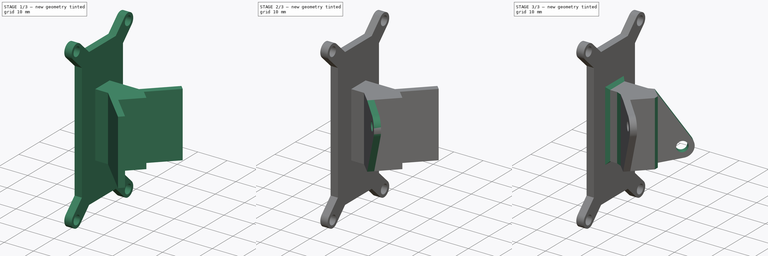
[diagram: build sequence overview — one tinted view per stage of 3, left to right]
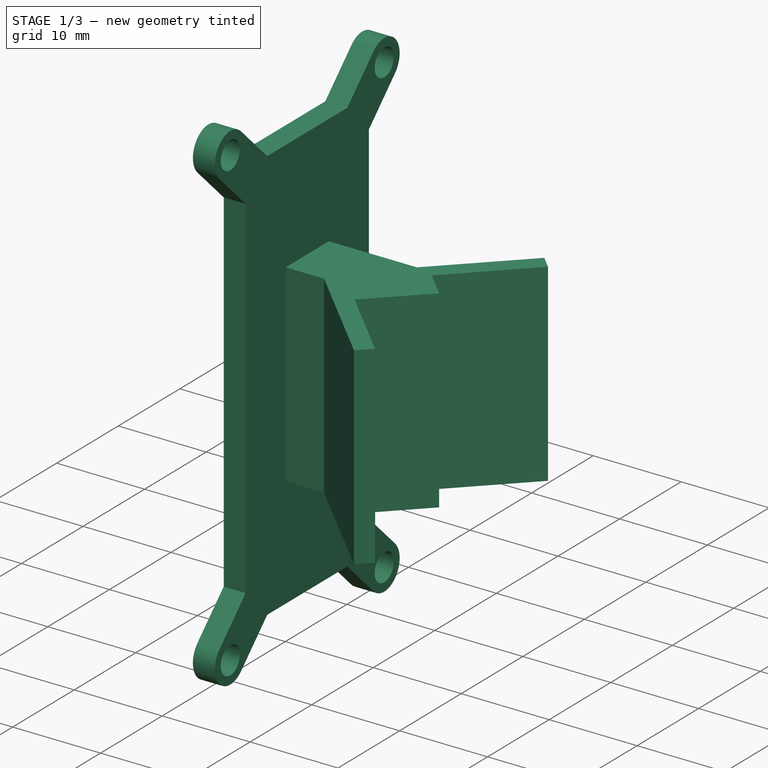
[diagram: stage 1 of 3 — iso view after this stage's code; geometry added in this stage tinted green]
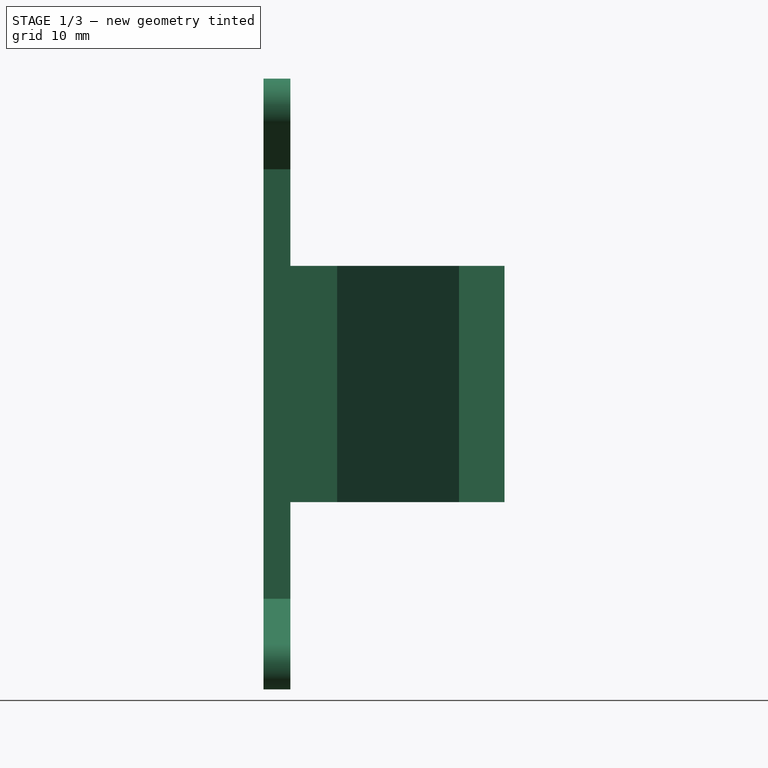
[diagram: stage 1 of 3 — front view after this stage's code; geometry added in this stage tinted green]
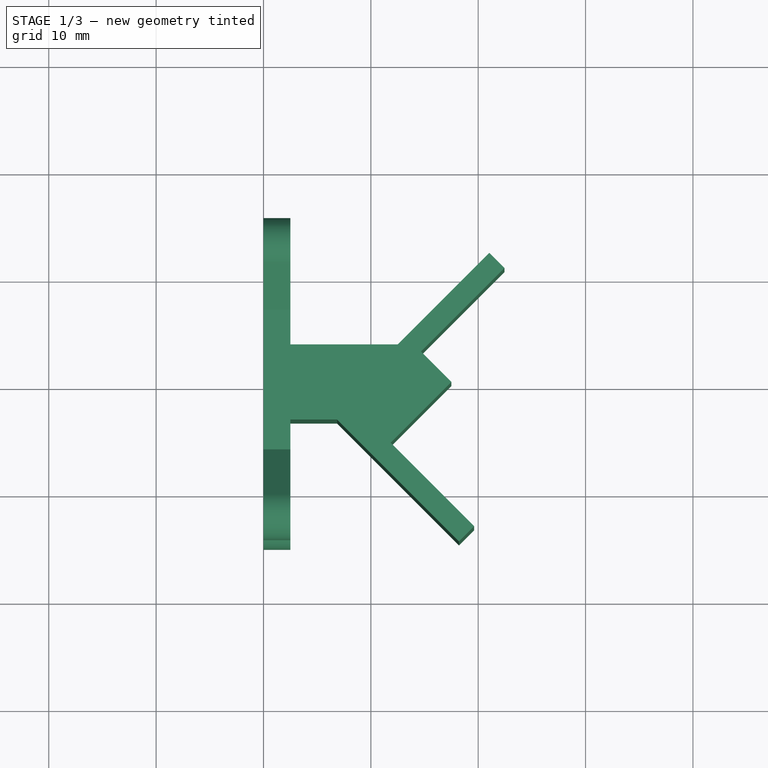
[diagram: stage 1 of 3 — top view after this stage's code; geometry added in this stage tinted green]
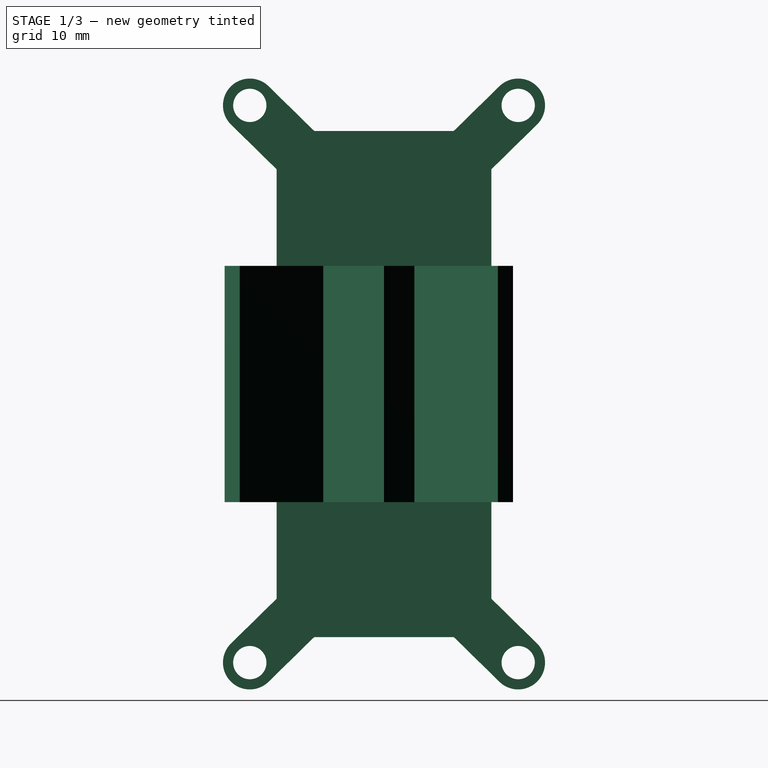
[diagram: stage 1 of 3 — right view after this stage's code; geometry added in this stage tinted green]
FCSTD DOCUMENT  (FreeCAD 0.18R16110 (Git))
Label: Soporte_MicroControlador
License: All rights reserved
LicenseURL: http://en.wikipedia.org/wiki/All_rights_reserved
objects: Sketcher::SketchObject×4, PartDesign::Pad×2, PartDesign::Pocket×2, PartDesign::Plane×1, PartDesign::Chamfer×1, PartDesign::Body×1
note: 15 computed .brp shape members not serialized (recipe doc carries the construction recipe); baked Part::Feature solids carry a one-line shape summary decoded from their .brp

FEATURE [Sketcher::SketchObject] Sketch170
  MapMode = 5
  Placement = pos=(0,0,0) rot=(0.57735,0.57735,0.57735;2.0944rad)
  Support = -> [YZ_Plane076]
  sketch-geometry (27):
    g0: Circle CenterX=-12.5 CenterY=25.95 CenterZ=0 NormalX=0 NormalY=0 NormalZ=1 AngleXU=0 Radius=1.55
    g1: ArcOfCircle CenterX=-12.5 CenterY=25.95 CenterZ=0 NormalX=0 NormalY=0 NormalZ=1 AngleXU=0 Radius=2.5 StartAngle=0.795542 EndAngle=3.93713
    g2: LineSegment StartX=-14.2497 StartY=24.1644 StartZ=0 EndX=-10 EndY=20 EndZ=0
    g3: LineSegment StartX=-10.7503 StartY=27.7356 StartZ=0 EndX=-6.50051 EndY=23.5712 EndZ=0
    g4: LineSegment [constr] StartX=-10 StartY=20 StartZ=0 EndX=-6.50051 EndY=23.5712 EndZ=0
    g5: LineSegment StartX=-10 StartY=20 StartZ=0 EndX=-10 EndY=0 EndZ=0
    g6: LineSegment StartX=-6.50051 StartY=23.5712 StartZ=0 EndX=0 EndY=23.5712 EndZ=0
    g7: Circle CenterX=12.5 CenterY=25.95 CenterZ=0 NormalX=0 NormalY=0 NormalZ=1 AngleXU=0 Radius=1.55
    g8: ArcOfCircle CenterX=12.5 CenterY=25.95 CenterZ=0 NormalX=0 NormalY=0 NormalZ=1 AngleXU=0 Radius=2.5 StartAngle=5.48764 EndAngle=8.62924
    g9: LineSegment StartX=14.2497 StartY=24.1644 StartZ=0 EndX=10 EndY=20 EndZ=0
    g10: LineSegment StartX=10.7503 StartY=27.7356 StartZ=0 EndX=6.50051 EndY=23.5712 EndZ=0
    g11: LineSegment [constr] StartX=10 StartY=20 StartZ=0 EndX=6.50051 EndY=23.5712 EndZ=0
    g12: LineSegment StartX=6.50051 StartY=23.5712 StartZ=0 EndX=0 EndY=23.5712 EndZ=0
    g13: LineSegment StartX=10 StartY=20 StartZ=0 EndX=10 EndY=0 EndZ=0
    g14: Circle CenterX=-12.5 CenterY=-25.95 CenterZ=0 NormalX=0 NormalY=0 NormalZ=1 AngleXU=0 Radius=1.55
    g15: ArcOfCircle CenterX=-12.5 CenterY=-25.95 CenterZ=0 NormalX=0 NormalY=0 NormalZ=1 AngleXU=0 Radius=2.5 StartAngle=2.34606 EndAngle=5.48765
    g16: LineSegment StartX=-14.2498 StartY=-24.1644 StartZ=0 EndX=-10 EndY=-20 EndZ=0
    g17: LineSegment StartX=-10.7502 StartY=-27.7356 StartZ=0 EndX=-6.50051 EndY=-23.5712 EndZ=0
    g18: LineSegment [constr] StartX=-10 StartY=-20 StartZ=0 EndX=-6.50051 EndY=-23.5712 EndZ=0
    g19: LineSegment StartX=-10 StartY=-20 StartZ=0 EndX=-10 EndY=0 EndZ=0
    g20: LineSegment StartX=-6.50051 StartY=-23.5712 StartZ=0 EndX=6.50051 EndY=-23.5712 EndZ=0
    g21: Circle CenterX=12.5 CenterY=-25.95 CenterZ=0 NormalX=0 NormalY=0 NormalZ=1 AngleXU=0 Radius=1.55
    g22: ArcOfCircle CenterX=12.5 CenterY=-25.95 CenterZ=0 NormalX=0 NormalY=0 NormalZ=1 AngleXU=0 Radius=2.5 StartAngle=3.93713 EndAngle=7.07872
    g23: LineSegment StartX=14.2498 StartY=-24.1644 StartZ=0 EndX=10 EndY=-20 EndZ=0
    g24: LineSegment StartX=10.7502 StartY=-27.7356 StartZ=0 EndX=6.50051 EndY=-23.5712 EndZ=0
    g25: LineSegment [constr] StartX=10 StartY=-20 StartZ=0 EndX=6.50051 EndY=-23.5712 EndZ=0
    g26: LineSegment StartX=10 StartY=-20 StartZ=0 EndX=10 EndY=0 EndZ=0
  constraints (77):
    c: Diameter(g0) = 3.1
    c: Coincident(g1,g0)
    c: Diameter(g1) = 5
    c: Tangent(g2,g1)
    c: Tangent(g3,g1)
    c: Parallel(g3,g2)
    c: Coincident(g1,g3)
    c: Coincident(g1,g2)
    c: DistanceY(g-1,g0) = 25.95
    c: Coincident(g5,g2)
    c: PointOnObject(g5,g-1)
    c: Vertical(g5)
    c: Coincident(g6,g3)
    c: PointOnObject(g6,g-2)
    c: Horizontal(g6)
    c: Coincident(g3,g4)
    c: Coincident(g4,g2)
    c: DistanceX(g0,g-1) = 12.5
    c: DistanceX(g2,g6) = 10
    c: DistanceY(g5,g2) = 20
    c: Diameter(g7) = 3.1
    c: Coincident(g8,g7)
    c: Diameter(g8) = 5
    c: Tangent(g9,g8)
    c: Tangent(g10,g8)
    c: Parallel(g10,g9)
    c: Coincident(g8,g10)
    c: Coincident(g8,g9)
    c: Coincident(g13,g9)
    c: Vertical(g13)
    c: Coincident(g12,g10)
    c: Horizontal(g12)
    c: Coincident(g10,g11)
    c: Coincident(g11,g9)
    c: Coincident(g12,g6)
    c: DistanceX(g6,g7) = 12.5
    c: DistanceX(g6,g9) = 10
    c: DistanceY(g13,g7) = 25.95
    c: PointOnObject(g13,g-1)
    c: Diameter(g14) = 3.1
    c: Coincident(g15,g14)
    c: Diameter(g15) = 5
    c: Tangent(g16,g15)
    c: Tangent(g17,g15)
    c: Parallel(g17,g16)
    c: Coincident(g15,g17)
    c: Coincident(g15,g16)
    c: Coincident(g19,g16)
    c: Vertical(g19)
    c: Coincident(g20,g17)
    c: Horizontal(g20)
    c: Coincident(g17,g18)
    c: Coincident(g18,g16)
    c: Diameter(g21) = 3.1
    c: Coincident(g22,g21)
    c: Diameter(g22) = 5
    c: Tangent(g23,g22)
    c: Tangent(g24,g22)
    c: Parallel(g24,g23)
    c: Coincident(g22,g24)
    c: Coincident(g22,g23)
    c: Coincident(g26,g23)
    c: Vertical(g26)
    c: Coincident(g24,g25)
    c: Coincident(g25,g23)
    c: Coincident(g26,g13)
    c: Coincident(g19,g5)
    c: Coincident(g20,g24)
    c: DistanceX(g14,g-1) = 12.5
    c: DistanceX(g-1,g21) = 12.5
    c: DistanceY(g21,g-1) = 25.95
    c: DistanceY(g14,g-1) = 25.95
    c: Perpendicular(g2,g4)
    c: Perpendicular(g9,g11)
    c: Perpendicular(g18,g16)
    c: Perpendicular(g23,g25)
    c: DistanceY(g16,g5) = 20
FEATURE [PartDesign::Pad] Pad089
  Length = 2.5
  Length2 = 100
  Placement = pos=(0,0,0) rot=(0.57735,0.57735,0.57735;2.0944rad)
  Profile = -> Sketch170
  Type = 0
FEATURE [PartDesign::Plane] DatumPlane002
  AttachmentOffset = pos=(0,0,0) rot=(1,0,0;1.5708rad)
  Length = 36.2264
  MapMode = 5
  Placement = pos=(2.5,-5e-16,5e-16) rot=(0.707107,0.707107,0;3.14159rad)
  ResizeMode = 0
  Support = -> [Pad089]
  Width = 38.6886
FEATURE [Sketcher::SketchObject] Sketch171
  MapMode = 5
  Placement = pos=(2.5,-5e-16,5e-16) rot=(0.707107,0.707107,0;3.14159rad)
  Support = -> [DatumPlane002]
  sketch-geometry (11):
    g0: LineSegment StartX=-13.435 StartY=17.1213 StartZ=0 EndX=-14.8492 EndY=15.7071 EndZ=0
    g1: LineSegment StartX=-14.8492 StartY=15.7071 StartZ=0 EndX=-3.5 EndY=4.35786 EndZ=0
    g2: LineSegment StartX=-3.5 StartY=4.35786 StartZ=0 EndX=-3.5 EndY=0 EndZ=0
    g3: LineSegment StartX=-3.5 StartY=0 StartZ=0 EndX=3.5 EndY=0 EndZ=0
    g4: LineSegment StartX=3.5 StartY=0 StartZ=0 EndX=3.5 EndY=10.0147 EndZ=0
    g5: LineSegment StartX=3.5 StartY=10.0147 StartZ=0 EndX=12.0208 EndY=18.5355 EndZ=0
    g6: LineSegment StartX=12.0208 StartY=18.5355 StartZ=0 EndX=10.6066 EndY=19.9497 EndZ=0
    g7: LineSegment StartX=10.6066 StartY=19.9497 StartZ=0 EndX=2.82843 EndY=12.1716 EndZ=0
    g8: LineSegment StartX=2.82843 StartY=12.1716 StartZ=0 EndX=0 EndY=15 EndZ=0
    g9: LineSegment StartX=0 StartY=15 StartZ=0 EndX=-5.65685 EndY=9.34315 EndZ=0
    g10: LineSegment StartX=-5.65685 StartY=9.34315 StartZ=0 EndX=-13.435 EndY=17.1213 EndZ=0
  constraints (32):
    c: Coincident(g0,g1)
    c: Coincident(g1,g2)
    c: PointOnObject(g2,g-1)
    c: Vertical(g2)
    c: Coincident(g2,g3)
    c: Coincident(g3,g4)
    c: Vertical(g4)
    c: Coincident(g4,g5)
    c: Coincident(g5,g6)
    c: Coincident(g6,g7)
    c: Coincident(g7,g8)
    c: Coincident(g8,g9)
    c: Coincident(g9,g10)
    c: Coincident(g10,g0)
    c: Parallel(g10,g1)
    c: Parallel(g7,g5)
    c: Perpendicular(g8,g9)
    c: Perpendicular(g7,g8)
    c: Perpendicular(g9,g10)
    c: Perpendicular(g0,g10)
    c: Perpendicular(g6,g7)
    c: Distance(g8) = 4
    c: Distance(g9) = 8
    c: PointOnObject(g8,g-2)
    c: Distance(g0) = 2
    c: Distance(g6) = 2
    c: Angle(g-2,g8) = 0.785398
    c: Symmetric(g2,g3,g-2)
    c: Distance(g7) = 11
    c: Distance(g10) = 11
    c: Distance(g1,g4) = 7
    c: Distance(g-1,g8) = 15
FEATURE [PartDesign::Pad] Pad090
  BaseFeature = -> Pad089
  Length = 22
  Length2 = 100
  Midplane = true
  Placement = pos=(0,0,0) rot=(0.57735,0.57735,0.57735;2.0944rad)
  Profile = -> Sketch171
  Type = 0
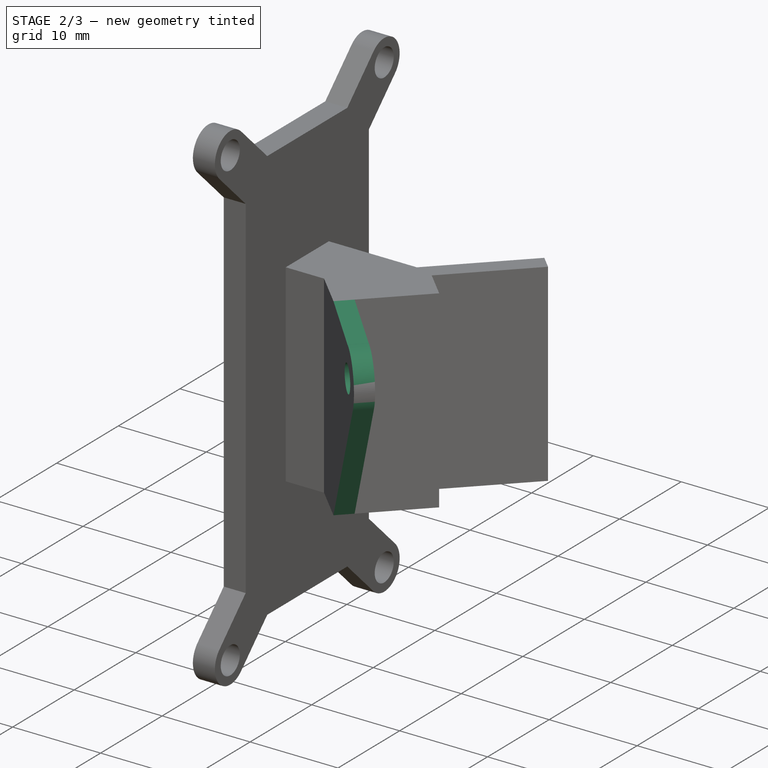
[diagram: stage 2 of 3 — iso view after this stage's code; geometry added in this stage tinted green]
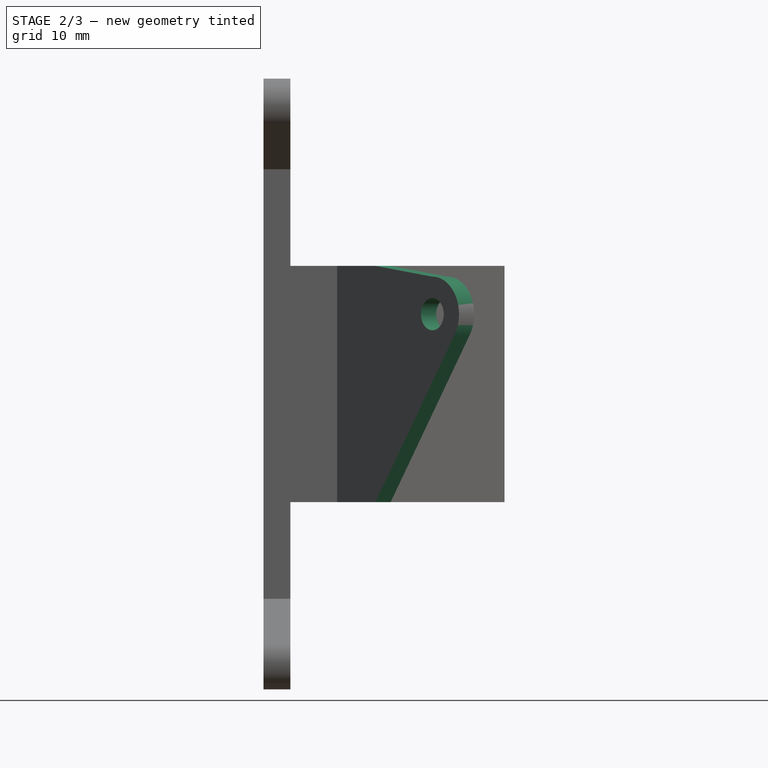
[diagram: stage 2 of 3 — front view after this stage's code; geometry added in this stage tinted green]
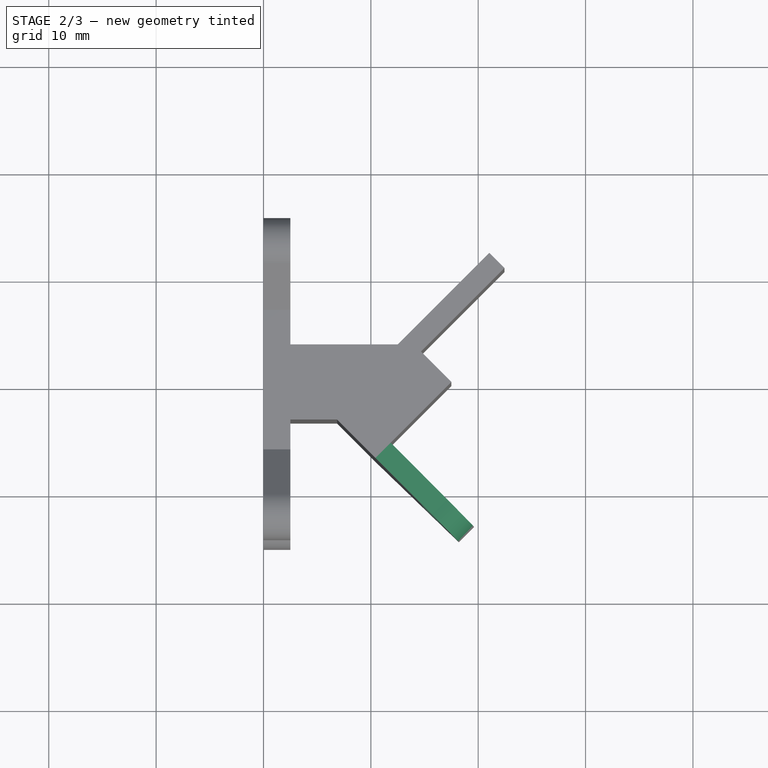
[diagram: stage 2 of 3 — top view after this stage's code; geometry added in this stage tinted green]
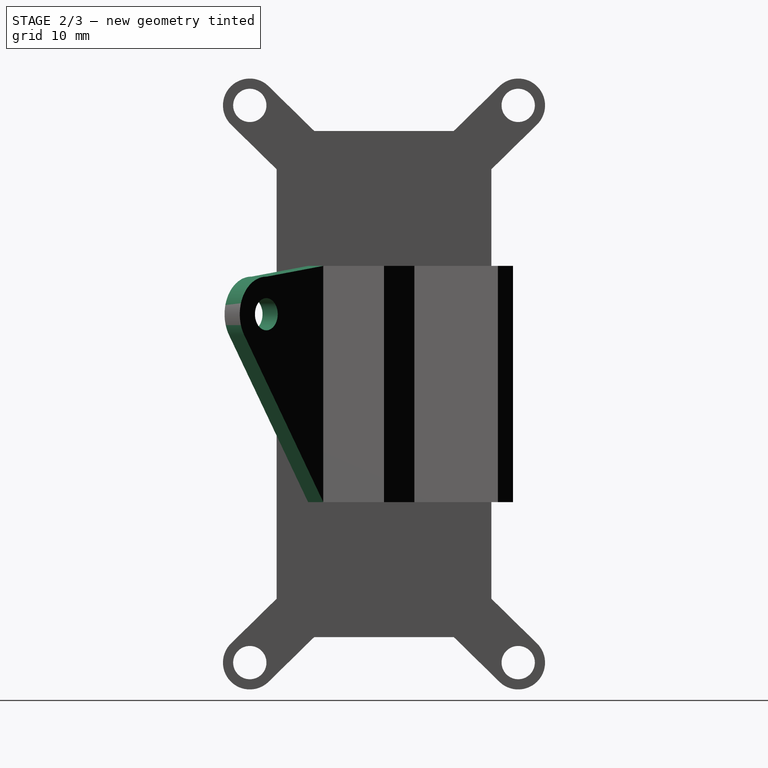
[diagram: stage 2 of 3 — right view after this stage's code; geometry added in this stage tinted green]
FEATURE [Sketcher::SketchObject] Sketch172
  ExternalGeometry = -> [Pad090]
  MapMode = 5
  Placement = pos=(1.67893,1.67893,1.4e-15) rot=(0.281085,0.678598,-0.678598;3.68962rad)
  Support = -> [Pad090]
  sketch-geometry (9):
    g0: Circle CenterX=-19.8744 CenterY=-6.5 CenterZ=0 NormalX=0 NormalY=0 NormalZ=1 AngleXU=0 Radius=1.5
    g1: ArcOfCircle CenterX=-19.8744 CenterY=-6.5 CenterZ=0 NormalX=0 NormalY=0 NormalZ=1 AngleXU=0 Radius=3.5 StartAngle=2.55181 EndAngle=4.72437
    g2: LineSegment StartX=-19.8325 StartY=-9.99975 StartZ=0 EndX=-12.3744 EndY=-11 EndZ=0
    g3: LineSegment StartX=-12.3744 StartY=-11 StartZ=0 EndX=-12.3744 EndY=-12 EndZ=0
    g4: LineSegment StartX=-12.3744 StartY=-12 StartZ=0 EndX=-25.6758 EndY=-12 EndZ=0
    g5: LineSegment StartX=-25.6758 StartY=-12 StartZ=0 EndX=-25.6758 EndY=11.8747 EndZ=0
    g6: LineSegment StartX=-25.6758 StartY=11.8747 StartZ=0 EndX=-12.3744 EndY=11.8747 EndZ=0
    g7: LineSegment StartX=-12.3744 StartY=11.8747 StartZ=0 EndX=-12.3744 EndY=11 EndZ=0
    g8: LineSegment StartX=-12.3744 StartY=11 StartZ=0 EndX=-22.7831 EndY=-4.55338 EndZ=0
  constraints (22):
    c: Distance(g0,g-3) = 3.5
    c: Diameter(g0) = 3
    c: DistanceY(g-1,g0) = -6.5
    c: Coincident(g1,g0)
    c: Tangent(g1,g-3)
    c: Coincident(g2,g3)
    c: Vertical(g3)
    c: Coincident(g3,g4)
    c: Horizontal(g4)
    c: Coincident(g4,g5)
    c: Vertical(g5)
    c: Coincident(g5,g6)
    c: Horizontal(g6)
    c: Coincident(g6,g7)
    c: Vertical(g7)
    c: Coincident(g7,g8)
    c: Tangent(g1,g8)
    c: Coincident(g1,g8)
    c: Coincident(g1,g2)
    c: DistanceY(g3,g3) = 1
    c: Coincident(g2,g-5)
    c: Coincident(g7,g-5)
FEATURE [PartDesign::Pocket] Pocket066
  BaseFeature = -> Pad090
  Length = 5
  Length2 = 100
  Placement = pos=(0,0,0) rot=(0.57735,0.57735,0.57735;2.0944rad)
  Profile = -> Sketch172
  Type = 0
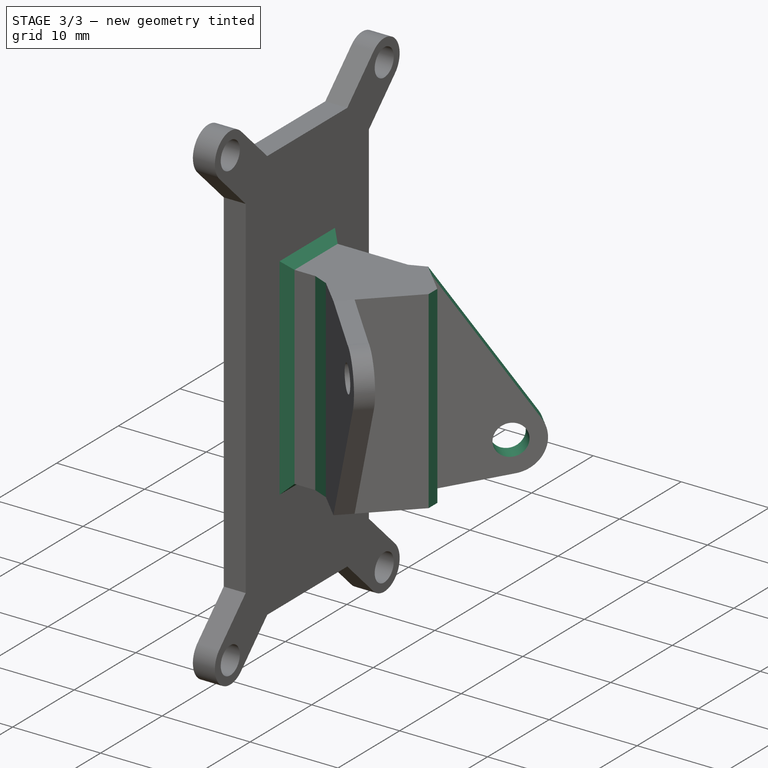
[diagram: stage 3 of 3 — iso view after this stage's code; geometry added in this stage tinted green]
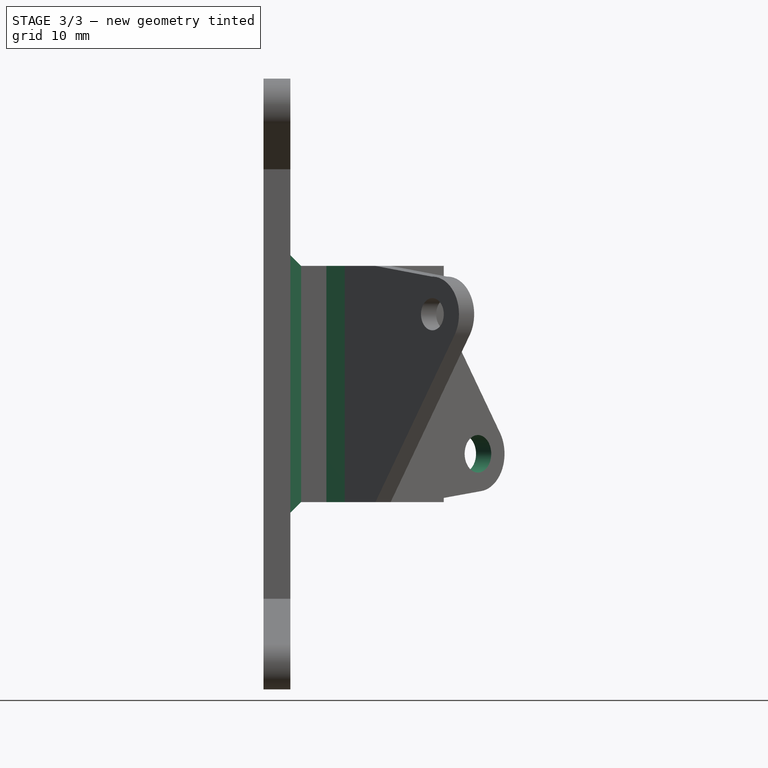
[diagram: stage 3 of 3 — front view after this stage's code; geometry added in this stage tinted green]
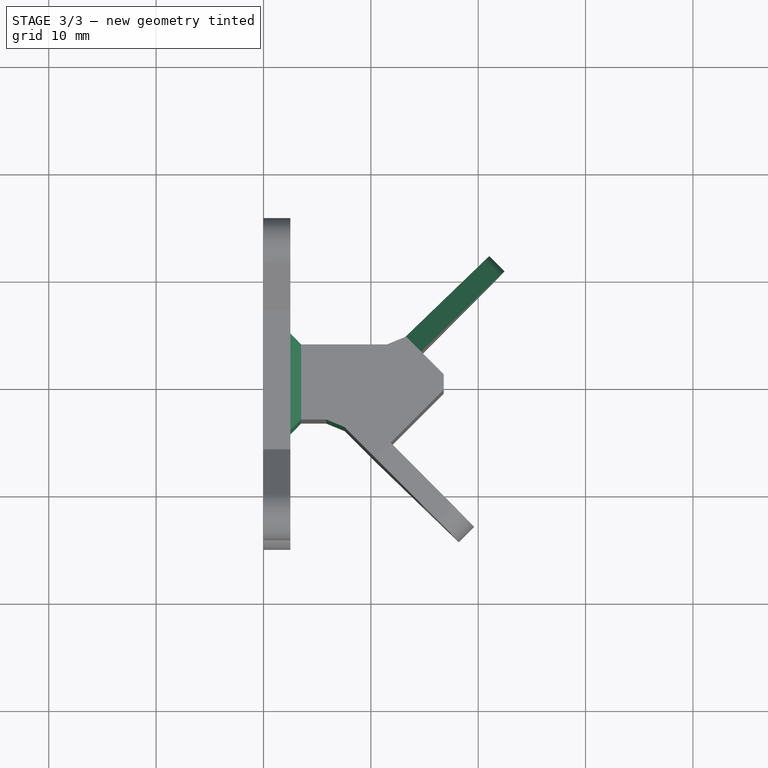
[diagram: stage 3 of 3 — top view after this stage's code; geometry added in this stage tinted green]
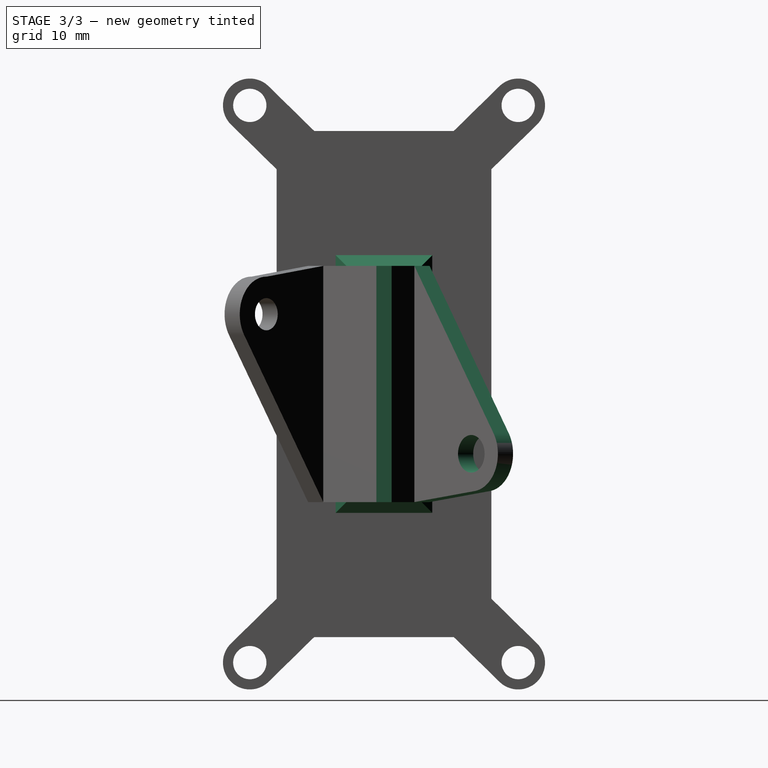
[diagram: stage 3 of 3 — right view after this stage's code; geometry added in this stage tinted green]
FEATURE [Sketcher::SketchObject] Sketch
  ExternalGeometry = -> [Pocket066]
  MapMode = 5
  Placement = pos=(5.92157,-5.92157,5e-15) rot=(0.357407,0.862856,-0.357407;1.71777rad)
  Support = -> [Pocket066]
  sketch-geometry (9):
    g0: Circle CenterX=6.5 CenterY=19.8744 CenterZ=0 NormalX=0 NormalY=0 NormalZ=1 AngleXU=0 Radius=1.75
    g1: LineSegment StartX=9.97104 StartY=20.3237 StartZ=0 EndX=11 EndY=12.3744 EndZ=0
    g2: LineSegment StartX=11 StartY=12.3744 StartZ=0 EndX=13.1889 EndY=12.3744 EndZ=0
    g3: LineSegment StartX=13.1889 StartY=12.3744 StartZ=0 EndX=13.2376 EndY=26.9038 EndZ=0
    g4: LineSegment StartX=13.2376 StartY=26.9038 StartZ=0 EndX=-12.1225 EndY=26.9038 EndZ=0
    g5: LineSegment StartX=-12.1225 StartY=26.9038 StartZ=0 EndX=-12.1225 EndY=12.3723 EndZ=0
    g6: LineSegment StartX=-12.1225 StartY=12.3723 StartZ=0 EndX=-11 EndY=12.3744 EndZ=0
    g7: LineSegment StartX=-11 StartY=12.3744 StartZ=0 EndX=4.5534 EndY=22.7831 EndZ=0
    g8: ArcOfCircle CenterX=6.5 CenterY=19.8744 CenterZ=0 NormalX=0 NormalY=0 NormalZ=1 AngleXU=0 Radius=3.5 StartAngle=0.128724 EndAngle=2.16057
  constraints (18):
    c: Coincident(g1,g2)
    c: Coincident(g2,g3)
    c: Coincident(g3,g4)
    c: Coincident(g4,g5)
    c: Coincident(g5,g6)
    c: Coincident(g6,g7)
    c: Horizontal(g4)
    c: Vertical(g5)
    c: Coincident(g1,g-4)
    c: Horizontal(g2)
    c: Tangent(g8,g1) = 1.5708
    c: Tangent(g7,g8) = 1.5708
    c: Tangent(g8,g-5)
    c: Coincident(g0,g8)
    c: DistanceY(g0,g-5) = 3.5
    c: DistanceX(g-1,g0) = 6.5
    c: Coincident(g6,g-3)
    c: Diameter(g0) = 3.5
FEATURE [PartDesign::Pocket] Pocket
  BaseFeature = -> Pocket066
  Length = 5
  Length2 = 100
  Placement = pos=(0,0,0) rot=(0.57735,0.57735,0.57735;2.0944rad)
  Profile = -> Sketch
  Type = 0
FEATURE [PartDesign::Chamfer] Chamfer
  Base = -> Pocket [Edge49,Edge50,Edge48,Edge51,Edge74,Edge85,Edge99]
  BaseFeature = -> Pocket
  Placement = pos=(0,0,0) rot=(0.57735,0.57735,0.57735;2.0944rad)
  Size = 1
FEATURE [PartDesign::Body] Body076  label="Controller_Plate"
  Group = -> [Sketch170,Pad089,DatumPlane002,Sketch171,Pad090,Sketch172,Pocket066,Sketch,Pocket,Chamfer]
  Origin = -> Origin076
  Tip = -> Chamfer
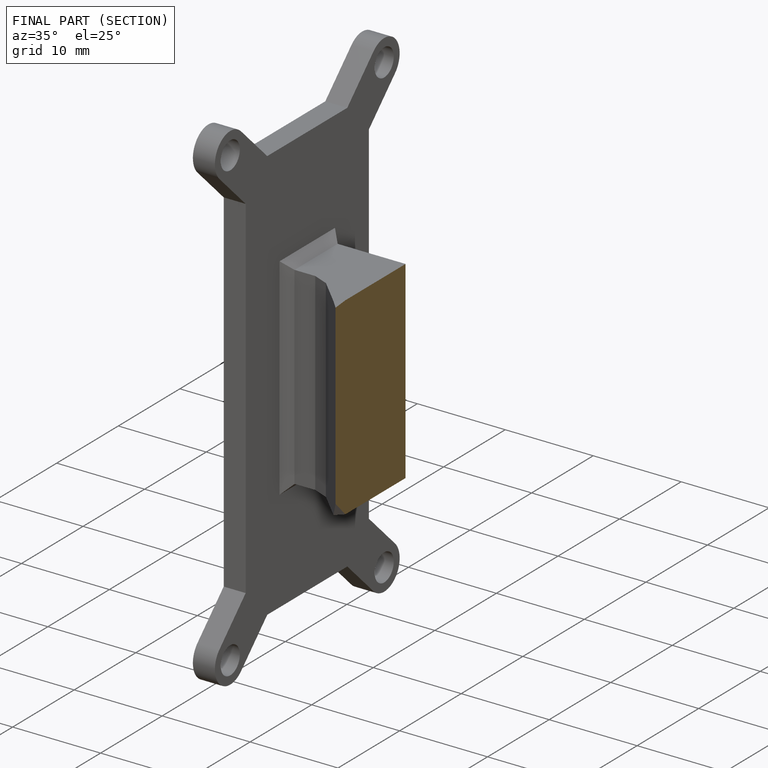
[diagram: finished part — half-section view (interior)]
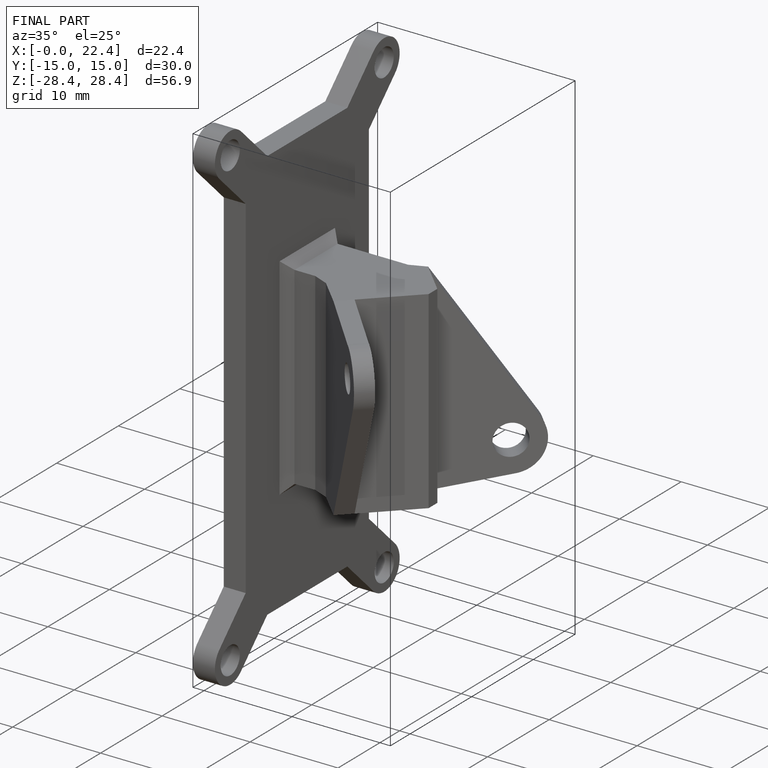
[diagram: finished part — iso view with bounding-box wireframe]
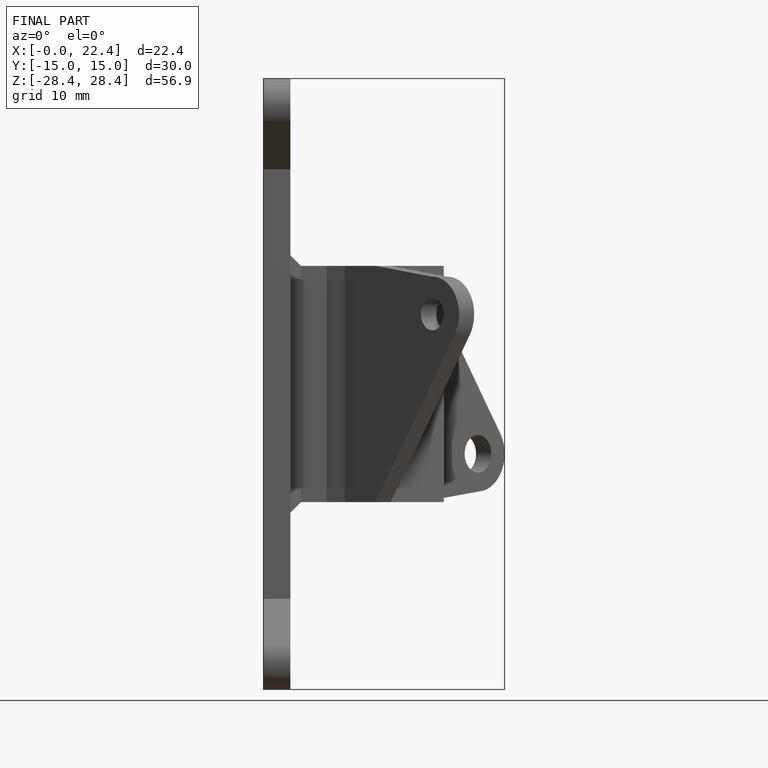
[diagram: finished part — front view with bounding-box wireframe]
